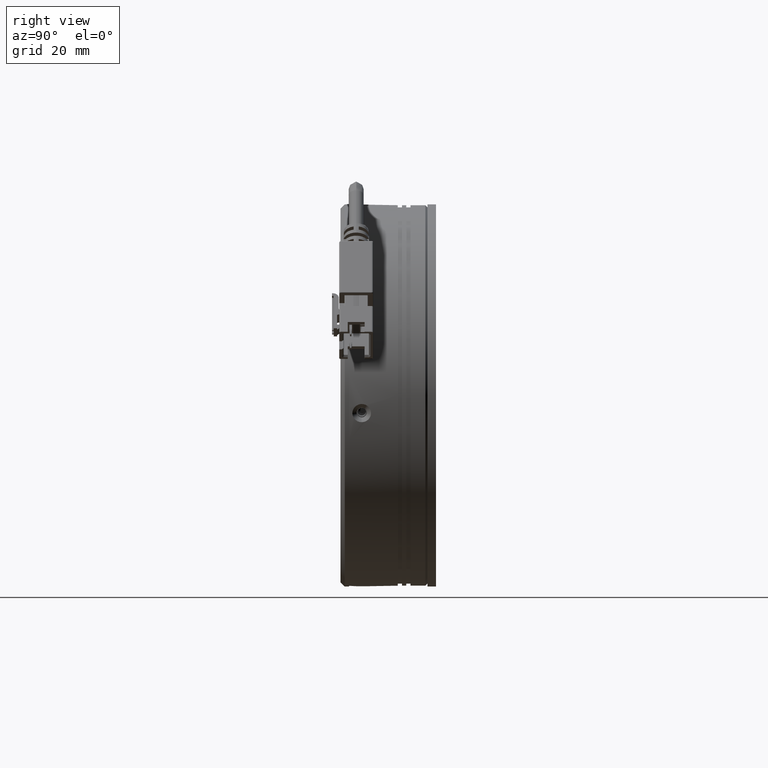
[diagram: clean part render]
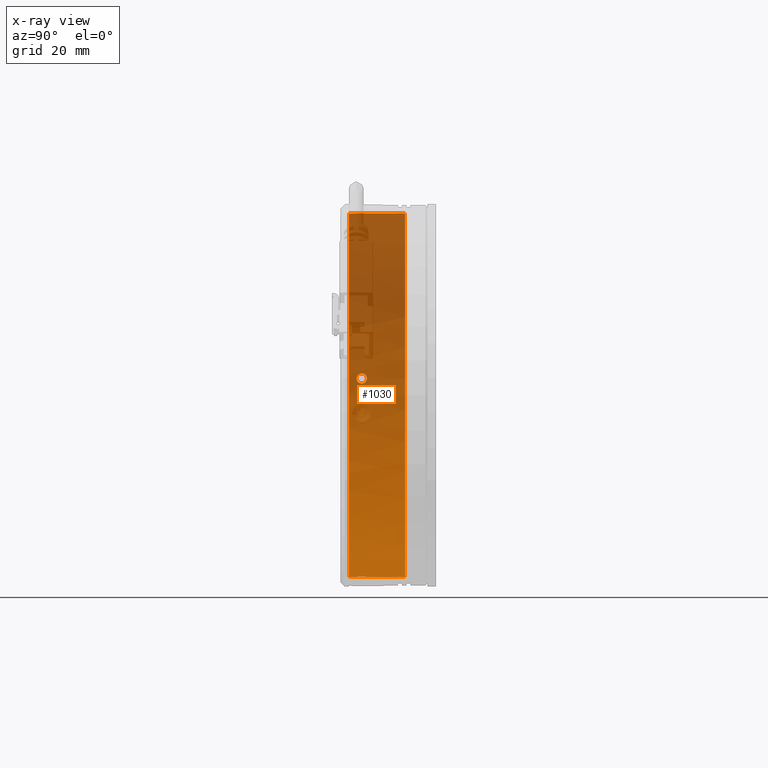
[diagram: x-ray — body ghosted, one internal face saturated and labeled with its STEP entity id]
A machine part, right view, then the same camera in x-ray: the body is ghosted and one INTERNAL B-rep face — a face not visible from any outside direction — is saturated and labeled: STEP entity #1030.
In plain terms, the highlighted cylindrical surface (partial cylindrical patch) has radius 43 mm, axis along (0, -1, 0).
Its self-contained STEP definition (entity closure, byte-faithful):
#1030 = ADVANCED_FACE ( 'NONE', ( #28821, #108524 ), #15745, .F. ) ;
#1582 = CARTESIAN_POINT ( 'NONE',  ( -59.13055851118587500, 21.16479325353773400, -46.48959252541622100 ) ) ;
#1676 = AXIS2_PLACEMENT_3D ( 'NONE', #31328, #104038, #41767 ) ;
#2055 = CARTESIAN_POINT ( 'NONE',  ( -59.01102577601075400, 20.87428248863354300, -46.50381579064270500 ) ) ;
#2647 = CARTESIAN_POINT ( 'NONE',  ( -96.86757582513840200, 20.51770827677443900, -0.5529939431728031500 ) ) ;
#2734 = ORIENTED_EDGE ( 'NONE', *, *, #115306, .F. ) ;
#3347 = CARTESIAN_POINT ( 'NONE',  ( -50.74681618080435900, 20.51933151601326000, 39.07973788981537700 ) ) ;
#3400 = CARTESIAN_POINT ( 'NONE',  ( -96.80562336960153400, 31.65322862557684400, 0.1802548467408904300 ) ) ;
#3626 = CARTESIAN_POINT ( 'NONE',  ( -96.89797751519418500, 21.79289201016769400, -0.9849878198004277100 ) ) ;
#3841 = CARTESIAN_POINT ( 'NONE',  ( -96.80431268817427800, 31.66174108781863300, 0.1943612039414953100 ) ) ;
#4062 = CARTESIAN_POINT ( 'NONE',  ( -96.68172236076956900, 21.79317404277602000, 1.342502706317228100 ) ) ;
#5179 = CARTESIAN_POINT ( 'NONE',  ( -57.96821724117605600, 31.65322812544198800, -46.61350495949732700 ) ) ;
#5618 = CARTESIAN_POINT ( 'NONE',  ( -50.01186446922126500, 31.65322812541536400, 39.01766022335910800 ) ) ;
#5931 = VERTEX_POINT ( 'NONE', #119558 ) ;
#6181 = CARTESIAN_POINT ( 'NONE',  ( -50.32653876319675100, 22.64691947902560200, 39.04597531702494700 ) ) ;
#7536 = CARTESIAN_POINT ( 'NONE',  ( -57.96821724117763400, 22.67876601230220100, -46.61350495949558600 ) ) ;
#8020 = EDGE_CURVE ( 'NONE', #64007, #104411, #68437, .T. ) ;
#8264 = DIRECTION ( 'NONE',  ( 0.0000000000000000000, -1.000000000000000000, 0.0000000000000000000 ) ) ;
#8490 = ORIENTED_EDGE ( 'NONE', *, *, #82921, .T. ) ;
#9076 = CARTESIAN_POINT ( 'NONE',  ( -57.96821724117763400, 18.47876601230220900, -46.61350495949558600 ) ) ;
#9286 = CARTESIAN_POINT ( 'NONE',  ( -50.05418630618800800, 31.67876601226952400, 39.02157142818928300 ) ) ;
#9386 = AXIS2_PLACEMENT_3D ( 'NONE', #53058, #53790, #49334 ) ;
#9787 = VERTEX_POINT ( 'NONE', #25003 ) ;
#11433 = ORIENTED_EDGE ( 'NONE', *, *, #123347, .F. ) ;
#12129 = CARTESIAN_POINT ( 'NONE',  ( -59.16152130652403000, 21.32029263391762800, -46.48581046226725300 ) ) ;
#12274 = CARTESIAN_POINT ( 'NONE',  ( -96.67792894938492100, 21.32021690081612400, 1.373558083239857300 ) ) ;
#12578 = CARTESIAN_POINT ( 'NONE',  ( -58.70270433818497900, 20.51985732902811700, -46.53903888285432100 ) ) ;
#12648 = DIRECTION ( 'NONE',  ( 0.0000000000000000000, -1.000000000000000000, 0.0000000000000000000 ) ) ;
#13172 = CARTESIAN_POINT ( 'NONE',  ( -96.88991127892792600, 20.87358254529853200, -0.8645356997651765200 ) ) ;
#13879 = CARTESIAN_POINT ( 'NONE',  ( -51.05687911961158000, 20.87428022849007200, 39.10196287542770900 ) ) ;
#14151 = CARTESIAN_POINT ( 'NONE',  ( -96.88385327291162200, 22.21661702246569800, -0.7758180287625345800 ) ) ;
#14589 = CARTESIAN_POINT ( 'NONE',  ( -96.67792894938493500, 21.47876601230221300, 1.373558083239857300 ) ) ;
#14617 = ORIENTED_EDGE ( 'NONE', *, *, #123970, .F. ) ;
#14841 = VERTEX_POINT ( 'NONE', #9076 ) ;
#15199 = B_SPLINE_CURVE_WITH_KNOTS ( 'NONE', 3,
 ( #27470, #16946, #130719, #37908 ),
 .UNSPECIFIED., .F., .F.,
 ( 4, 4 ),
 ( 0.0000000000000000000, 1.000000000000000000 ),
 .UNSPECIFIED. ) ;
#15212 = CIRCLE ( 'NONE', #134130, 43.00000000000000000 ) ;
#15745 = CYLINDRICAL_SURFACE ( 'NONE', #9386, 43.00000000000000000 ) ;
#16179 = EDGE_CURVE ( 'NONE', #34645, #92623, #77992, .T. ) ;
#16661 = CARTESIAN_POINT ( 'NONE',  ( -50.01186446922403000, 22.67876601230220100, 39.01766022332921600 ) ) ;
#16946 = CARTESIAN_POINT ( 'NONE',  ( -96.80823788860273300, 31.67025338333813500, 0.1520401031102260900 ) ) ;
#19967 = B_SPLINE_CURVE_WITH_KNOTS ( 'NONE', 3,
 ( #7536, #48543, #90824, #28510, #101263, #38942, #111718, #49467, #122144, #59896 ),
 .UNSPECIFIED., .F., .F.,
 ( 4, 2, 2, 2, 4 ),
 ( 6.938893903907228400E-018, 0.0004686704738960174000, 0.0009373409477920278500, 0.001406011421688038200, 0.001874681895584048800 ),
 .UNSPECIFIED. ) ;
#21084 = VECTOR ( 'NONE', #114832, 1000.000000000000000 ) ;
#21283 = EDGE_CURVE ( 'NONE', #24943, #114896, #15199, .T. ) ;
#21458 = LINE ( 'NONE', #80405, #128888 ) ;
#23073 = CARTESIAN_POINT ( 'NONE',  ( -58.28272155314756700, 20.31061254557882000, -46.58336041487204700 ) ) ;
#23221 = CARTESIAN_POINT ( 'NONE',  ( -96.69595082793580300, 20.87401925040273900, 1.222922440470592700 ) ) ;
#23674 = CARTESIAN_POINT ( 'NONE',  ( -96.89996670116035200, 21.32021693622073900, -1.016148852094848500 ) ) ;
#24349 = CARTESIAN_POINT ( 'NONE',  ( -51.20826733921236200, 21.32029273177708000, 39.11200347787634300 ) ) ;
#24622 = CARTESIAN_POINT ( 'NONE',  ( -96.85751770825967800, 22.52740794203347700, -0.4214931607460495900 ) ) ;
#24844 = CARTESIAN_POINT ( 'NONE',  ( -96.80168086924969400, 31.67876601095492000, 0.2225729403210405200 ) ) ;
#24943 = VERTEX_POINT ( 'NONE', #50688 ) ;
#25003 = CARTESIAN_POINT ( 'NONE',  ( -50.01186446922403000, 20.27876601230222100, 39.01766022332921600 ) ) ;
#26822 = CARTESIAN_POINT ( 'NONE',  ( -51.20826733921226300, 21.47876601230221300, 39.11200347787633500 ) ) ;
#27470 = CARTESIAN_POINT ( 'NONE',  ( -96.80954510899997000, 31.67876601095487400, 0.1379331521673202200 ) ) ;
#28316 = CARTESIAN_POINT ( 'NONE',  ( -57.96821724117763400, 20.27876601230222100, -46.61350495949558600 ) ) ;
#28510 = CARTESIAN_POINT ( 'NONE',  ( -58.56973787702020900, 22.52725014303103300, -46.55359423419172100 ) ) ;
#28821 = FACE_BOUND ( 'NONE', #31308, .T. ) ;
#29647 = CARTESIAN_POINT ( 'NONE',  ( -53.99004085520083900, 31.67876601230221200, -3.797922368083184200 ) ) ;
#31308 = EDGE_LOOP ( 'NONE', ( #135171, #57492 ) ) ;
#31328 = CARTESIAN_POINT ( 'NONE',  ( -53.99004085520083900, 18.47876601230220900, -3.797922368083184200 ) ) ;
#33508 = CARTESIAN_POINT ( 'NONE',  ( -57.96821724117763400, 20.27876601230222100, -46.61350495949558600 ) ) ;
#33650 = CARTESIAN_POINT ( 'NONE',  ( -96.73120243993423600, 20.51953091391165500, 0.9143344957996301100 ) ) ;
#34032 = B_SPLINE_CURVE_WITH_KNOTS ( 'NONE', 3,
 ( #107360, #55557, #3626, #76471, #14151, #86954, #24622, #97385, #35080, #107799, #45533, #118238, #56003, #128769, #66478, #4062, #76911, #14589 ),
 .UNSPECIFIED., .F., .F.,
 ( 4, 2, 2, 2, 2, 2, 2, 2, 4 ),
 ( 0.003751155575174307400, 0.004220050126775160200, 0.004688944678376012900, 0.005157839229976866500, 0.005626733781577719300, 0.006095628333178572000, 0.006564522884779424800, 0.007033417436380277500, 0.007502311987981130300 ),
 .UNSPECIFIED. ) ;
#34357 = CARTESIAN_POINT ( 'NONE',  ( -50.01186446922403000, 20.27876601230222100, 39.01766022332921600 ) ) ;
#34645 = VERTEX_POINT ( 'NONE', #5179 ) ;
#34941 = VERTEX_POINT ( 'NONE', #125635 ) ;
#35080 = CARTESIAN_POINT ( 'NONE',  ( -96.82017544590824800, 22.67865957059294500, 0.02360433792865126000 ) ) ;
#35319 = VERTEX_POINT ( 'NONE', #131964 ) ;
#37139 = CARTESIAN_POINT ( 'NONE',  ( -51.20826733921226300, 21.47876601230221300, 39.11200347787633500 ) ) ;
#37381 = ORIENTED_EDGE ( 'NONE', *, *, #91503, .T. ) ;
#37908 = CARTESIAN_POINT ( 'NONE',  ( -96.80562336960153400, 31.65322862557684400, 0.1802548467408904300 ) ) ;
#38942 = CARTESIAN_POINT ( 'NONE',  ( -58.92203728123876500, 22.21699232912831700, -46.51428535387514500 ) ) ;
#40082 = DIRECTION ( 'NONE',  ( -0.09251572990643718000, 0.0000000000000000000, -0.9957112230561023800 ) ) ;
#41179 = DIRECTION ( 'NONE',  ( 0.0000000000000000000, -1.000000000000000000, 0.0000000000000000000 ) ) ;
#41767 = DIRECTION ( 'NONE',  ( -0.09251572990643718000, 0.0000000000000000000, -0.9957112230561023800 ) ) ;
#42133 = CARTESIAN_POINT ( 'NONE',  ( -50.01186446922403000, 10.11989054203920400, 39.01766022332921600 ) ) ;
#43335 = VECTOR ( 'NONE', #12648, 1000.000000000000000 ) ;
#44121 = CARTESIAN_POINT ( 'NONE',  ( -96.77555139905590000, 20.31040733600649900, 0.4940391230490607800 ) ) ;
#45052 = ORIENTED_EDGE ( 'NONE', *, *, #135025, .T. ) ;
#45533 = CARTESIAN_POINT ( 'NONE',  ( -96.77577747926216000, 22.64784701081818200, 0.4918155024610730300 ) ) ;
#47034 = CARTESIAN_POINT ( 'NONE',  ( -50.05418630618800800, 31.67876601226952400, 39.02157142818928300 ) ) ;
#47274 = CARTESIAN_POINT ( 'NONE',  ( -57.98232387409957100, 31.66174075440059700, -46.61219425272943100 ) ) ;
#47616 = CARTESIAN_POINT ( 'NONE',  ( -51.17713777555357500, 21.79273877106668100, 39.11001627802897200 ) ) ;
#47749 = EDGE_CURVE ( 'NONE', #24943, #92623, #15212, .T. ) ;
#47930 = CARTESIAN_POINT ( 'NONE',  ( -58.01053519152217300, 31.67876601233793500, -46.60955192468390600 ) ) ;
#48543 = CARTESIAN_POINT ( 'NONE',  ( -58.12601096211489700, 22.67876601230220500, -46.59884367926780900 ) ) ;
#49334 = DIRECTION ( 'NONE',  ( -0.09251572990643718000, 0.0000000000000000000, -0.9957112230561023800 ) ) ;
#49467 = CARTESIAN_POINT ( 'NONE',  ( -59.12989638319632500, 21.79471032851107600, -46.48967188511356600 ) ) ;
#50165 = CARTESIAN_POINT ( 'NONE',  ( -96.67792894938493500, 21.47876601230221300, 1.373558083239857300 ) ) ;
#50688 = CARTESIAN_POINT ( 'NONE',  ( -96.80954510899997000, 31.67876601095487400, 0.1379331521673202200 ) ) ;
#52958 = ORIENTED_EDGE ( 'NONE', *, *, #99230, .T. ) ;
#53058 = CARTESIAN_POINT ( 'NONE',  ( -53.99004085520083900, 10.11989054203920400, -3.797922368083184200 ) ) ;
#53790 = DIRECTION ( 'NONE',  ( 0.0000000000000000000, -1.000000000000000000, 0.0000000000000000000 ) ) ;
#54594 = CARTESIAN_POINT ( 'NONE',  ( -96.82003073102922000, 20.27866012275181600, 0.02522589732732118500 ) ) ;
#55274 = CARTESIAN_POINT ( 'NONE',  ( -50.16965819016129300, 20.27876601230221400, 39.03232150355699300 ) ) ;
#55557 = CARTESIAN_POINT ( 'NONE',  ( -96.89996670116035200, 21.63731512378893000, -1.016148852094681500 ) ) ;
#56003 = CARTESIAN_POINT ( 'NONE',  ( -96.73142323909094400, 22.43982374782998000, 0.9123639815030434300 ) ) ;
#57492 = ORIENTED_EDGE ( 'NONE', *, *, #106444, .F. ) ;
#57905 = CARTESIAN_POINT ( 'NONE',  ( -59.16152130652402300, 21.47876601230221300, -46.48581046226725300 ) ) ;
#58075 = CARTESIAN_POINT ( 'NONE',  ( -50.96816138460680900, 22.21630882969532200, 39.09590565528512200 ) ) ;
#59896 = CARTESIAN_POINT ( 'NONE',  ( -59.16152130652402300, 21.47876601230221300, -46.48581046226725300 ) ) ;
#60147 = CARTESIAN_POINT ( 'NONE',  ( -57.96821724117763400, 10.11989054203920400, -46.61350495949558600 ) ) ;
#62175 = ORIENTED_EDGE ( 'NONE', *, *, #21283, .T. ) ;
#63480 = EDGE_CURVE ( 'NONE', #120085, #64007, #19967, .T. ) ;
#64007 = VERTEX_POINT ( 'NONE', #57905 ) ;
#64173 = VERTEX_POINT ( 'NONE', #50165 ) ;
#64458 = CARTESIAN_POINT ( 'NONE',  ( -59.16152130652402300, 21.47876601230221300, -46.48581046226725300 ) ) ;
#64837 = B_SPLINE_CURVE_WITH_KNOTS ( 'NONE', 3,
 ( #75085, #12274, #85549, #23221, #95969, #33650, #106403, #44121, #116833, #54594, #127339, #65048, #2647, #75532, #13172, #86002, #23674, #96418 ),
 .UNSPECIFIED., .F., .F.,
 ( 4, 2, 2, 2, 2, 2, 2, 2, 4 ),
 ( 0.0000000000000000000, 0.0004688944468967884300, 0.0009377888937935768600, 0.001406683340690365400, 0.001875577787587153700, 0.002344472234483942000, 0.002813366681380730800, 0.003282261128277519100, 0.003751155575174307400 ),
 .UNSPECIFIED. ) ;
#64986 = CARTESIAN_POINT ( 'NONE',  ( -57.96821724117763400, 10.11989054203920400, -46.61350495949558600 ) ) ;
#65048 = CARTESIAN_POINT ( 'NONE',  ( -96.85748812416029800, 20.42974931418126900, -0.4210785599531053900 ) ) ;
#65369 = VERTEX_POINT ( 'NONE', #9286 ) ;
#65748 = CARTESIAN_POINT ( 'NONE',  ( -50.61412590828523900, 20.43028188157337900, 39.06959796847463200 ) ) ;
#65876 = CARTESIAN_POINT ( 'NONE',  ( -57.96821724117763400, 22.67876601230220100, -46.61350495949558600 ) ) ;
#66478 = CARTESIAN_POINT ( 'NONE',  ( -96.69597854806619400, 22.08394947930590700, 1.222687703565670700 ) ) ;
#67230 = EDGE_CURVE ( 'NONE', #9787, #124367, #82757, .T. ) ;
#67537 = CARTESIAN_POINT ( 'NONE',  ( -50.04007838290424100, 31.67025338335974300, 39.02027466521391800 ) ) ;
#67550 = LINE ( 'NONE', #60147, #126085 ) ;
#67994 = CARTESIAN_POINT ( 'NONE',  ( -50.02597110220634800, 31.66174075438107800, 39.01897093010302300 ) ) ;
#68437 = B_SPLINE_CURVE_WITH_KNOTS ( 'NONE', 3,
 ( #64458, #12129, #1582, #2055, #74956, #12578, #85406, #23073, #95832, #33508 ),
 .UNSPECIFIED., .F., .F.,
 ( 4, 2, 2, 2, 4 ),
 ( 0.001874681895584048800, 0.002343352658888708300, 0.002812023422193367400, 0.003280694185498026500, 0.003749364948802686000 ),
 .UNSPECIFIED. ) ;
#68571 = CARTESIAN_POINT ( 'NONE',  ( -50.61412846823255100, 22.52709814498186000, 39.06959484466949600 ) ) ;
#70786 = VERTEX_POINT ( 'NONE', #75514 ) ;
#73310 = CARTESIAN_POINT ( 'NONE',  ( -96.80562336960153400, 31.65322862557684400, 0.1802548467408904300 ) ) ;
#73864 = CIRCLE ( 'NONE', #1676, 43.00000000000000000 ) ;
#74956 = CARTESIAN_POINT ( 'NONE',  ( -58.92255973357057300, 20.74122319490911800, -46.51422482449459700 ) ) ;
#75085 = CARTESIAN_POINT ( 'NONE',  ( -96.67792894938493500, 21.47876601230221300, 1.373558083239857300 ) ) ;
#75514 = CARTESIAN_POINT ( 'NONE',  ( -50.01186446922403000, 18.47876601230220900, 39.01766022332921600 ) ) ;
#75532 = CARTESIAN_POINT ( 'NONE',  ( -96.88391128082305700, 20.74153070131335100, -0.7765906267907313200 ) ) ;
#76201 = CARTESIAN_POINT ( 'NONE',  ( -50.96763672397546700, 20.74053969547610900, 39.09586889298326200 ) ) ;
#76471 = CARTESIAN_POINT ( 'NONE',  ( -96.88992728075425000, 22.08351277420170100, -0.8647715254671489700 ) ) ;
#76911 = CARTESIAN_POINT ( 'NONE',  ( -96.67792894938493500, 21.63731515919229800, 1.373558083239857100 ) ) ;
#77992 = B_SPLINE_CURVE_WITH_KNOTS ( 'NONE', 3,
 ( #110462, #47274, #79131, #120901 ),
 .UNSPECIFIED., .F., .F.,
 ( 4, 4 ),
 ( 0.0000000000000000000, 1.000000000000000000 ),
 .UNSPECIFIED. ) ;
#78811 = CARTESIAN_POINT ( 'NONE',  ( -50.01186446922403000, 22.67876601230220100, 39.01766022332921600 ) ) ;
#79022 = CARTESIAN_POINT ( 'NONE',  ( -50.16965809285910900, 22.67876601230220100, 39.03232149451623200 ) ) ;
#79131 = CARTESIAN_POINT ( 'NONE',  ( -57.99642985931386400, 31.67025338339706800, -46.61087657429839500 ) ) ;
#80405 = CARTESIAN_POINT ( 'NONE',  ( -50.01186446922403000, 10.11989054203920400, 39.01766022332921600 ) ) ;
#82757 = B_SPLINE_CURVE_WITH_KNOTS ( 'NONE', 3,
 ( #34357, #55274, #128020, #65748, #3347, #76201, #13879, #86692, #24349, #97115 ),
 .UNSPECIFIED., .F., .F.,
 ( 4, 2, 2, 2, 4 ),
 ( 0.0000000000000000000, 0.0004686704738960180500, 0.0009373409477920360900, 0.001406011421688054200, 0.001874681895584072200 ),
 .UNSPECIFIED. ) ;
#82921 = EDGE_CURVE ( 'NONE', #65369, #35319, #94094, .T. ) ;
#83500 = CIRCLE ( 'NONE', #92528, 43.00000000000000000 ) ;
#84267 = B_SPLINE_CURVE_WITH_KNOTS ( 'NONE', 3,
 ( #3400, #3841, #87172, #24844 ),
 .UNSPECIFIED., .F., .F.,
 ( 4, 4 ),
 ( 1.958528762031069600E-005, 1.000000000000000000 ),
 .UNSPECIFIED. ) ;
#84561 = ORIENTED_EDGE ( 'NONE', *, *, #47749, .F. ) ;
#85135 = ORIENTED_EDGE ( 'NONE', *, *, #103523, .F. ) ;
#85406 = CARTESIAN_POINT ( 'NONE',  ( -58.56973981762219200, 20.43043387962256600, -46.55359069222154700 ) ) ;
#85549 = CARTESIAN_POINT ( 'NONE',  ( -96.68171485812949600, 21.16464001443673500, 1.342563992037908900 ) ) ;
#86002 = CARTESIAN_POINT ( 'NONE',  ( -96.89797359824909500, 21.16435798182838800, -0.9849262009176985600 ) ) ;
#86692 = CARTESIAN_POINT ( 'NONE',  ( -51.17647236101910800, 21.16282169609336000, 39.10997229015048000 ) ) ;
#86954 = CARTESIAN_POINT ( 'NONE',  ( -96.86772184911062300, 22.43800111069277400, -0.5549714051471990000 ) ) ;
#87172 = CARTESIAN_POINT ( 'NONE',  ( -96.80299503536001300, 31.67025355006042300, 0.2084669134009927100 ) ) ;
#88980 = VERTEX_POINT ( 'NONE', #78811 ) ;
#90824 = CARTESIAN_POINT ( 'NONE',  ( -58.28076009375503500, 22.64758610942670500, -46.58356049526212000 ) ) ;
#91503 = EDGE_CURVE ( 'NONE', #35319, #88980, #100806, .T. ) ;
#92231 = EDGE_CURVE ( 'NONE', #65369, #34941, #83500, .T. ) ;
#92452 = ORIENTED_EDGE ( 'NONE', *, *, #8020, .F. ) ;
#92528 = AXIS2_PLACEMENT_3D ( 'NONE', #103453, #41179, #113900 ) ;
#92623 = VERTEX_POINT ( 'NONE', #47930 ) ;
#94094 = B_SPLINE_CURVE_WITH_KNOTS ( 'NONE', 3,
 ( #47034, #67537, #67994, #5618 ),
 .UNSPECIFIED., .F., .F.,
 ( 4, 4 ),
 ( 0.0000000000000000000, 1.000000000000000000 ),
 .UNSPECIFIED. ) ;
#95832 = CARTESIAN_POINT ( 'NONE',  ( -58.12601086481245000, 20.27876601230218900, -46.59884368830860500 ) ) ;
#95969 = CARTESIAN_POINT ( 'NONE',  ( -96.70636940243962000, 20.74091500213872800, 1.134372615780986100 ) ) ;
#96418 = CARTESIAN_POINT ( 'NONE',  ( -96.89996670116036600, 21.47876601230221300, -1.016148852094764400 ) ) ;
#97115 = CARTESIAN_POINT ( 'NONE',  ( -51.20826733921226300, 21.47876601230221300, 39.11200347787633500 ) ) ;
#97385 = CARTESIAN_POINT ( 'NONE',  ( -96.83387729119319000, 22.64712468859792000, -0.1337000241704109400 ) ) ;
#98413 = EDGE_LOOP ( 'NONE', ( #8490, #37381, #11433, #105496, #52958, #2734, #85135, #92452, #102759, #14617, #135110, #84561, #62175, #45052, #100653 ) ) ;
#99230 = EDGE_CURVE ( 'NONE', #9787, #70786, #21458, .T. ) ;
#99439 = CARTESIAN_POINT ( 'NONE',  ( -51.20826733921217800, 21.63723939068742300, 39.11200347787632100 ) ) ;
#100653 = ORIENTED_EDGE ( 'NONE', *, *, #92231, .F. ) ;
#100806 = LINE ( 'NONE', #42133, #21084 ) ;
#101263 = CARTESIAN_POINT ( 'NONE',  ( -58.70202487274481500, 22.43820050859115500, -46.53911399979600100 ) ) ;
#102382 = DIRECTION ( 'NONE',  ( 0.0000000000000000000, -1.000000000000000000, 0.0000000000000000000 ) ) ;
#102759 = ORIENTED_EDGE ( 'NONE', *, *, #63480, .F. ) ;
#103453 = CARTESIAN_POINT ( 'NONE',  ( -53.99004085520083900, 31.67876601230221200, -3.797922368083184200 ) ) ;
#103523 = EDGE_CURVE ( 'NONE', #104411, #14841, #123019, .T. ) ;
#104038 = DIRECTION ( 'NONE',  ( -0.0000000000000000000, 1.000000000000000000, -0.0000000000000000000 ) ) ;
#104411 = VERTEX_POINT ( 'NONE', #28316 ) ;
#105496 = ORIENTED_EDGE ( 'NONE', *, *, #67230, .F. ) ;
#106403 = CARTESIAN_POINT ( 'NONE',  ( -96.74576472843563100, 20.43012408257095600, 0.7812611852804995900 ) ) ;
#106444 = EDGE_CURVE ( 'NONE', #5931, #64173, #34032, .T. ) ;
#107360 = CARTESIAN_POINT ( 'NONE',  ( -96.89996670116036600, 21.47876601230221300, -1.016148852094764400 ) ) ;
#107799 = CARTESIAN_POINT ( 'NONE',  ( -96.79122204696321300, 22.67887190185259900, 0.3352826852380393400 ) ) ;
#108524 = FACE_OUTER_BOUND ( 'NONE', #98413, .T. ) ;
#110462 = CARTESIAN_POINT ( 'NONE',  ( -57.96821724117605600, 31.65322812544198800, -46.61350495949732700 ) ) ;
#111718 = CARTESIAN_POINT ( 'NONE',  ( -59.01087473947404800, 22.08325179611435700, -46.50383318590866100 ) ) ;
#113900 = DIRECTION ( 'NONE',  ( -0.09251572990643718000, 0.0000000000000000000, -0.9957112230561023800 ) ) ;
#114832 = DIRECTION ( 'NONE',  ( 0.0000000000000000000, -1.000000000000000000, 0.0000000000000000000 ) ) ;
#114896 = VERTEX_POINT ( 'NONE', #73310 ) ;
#115306 = EDGE_CURVE ( 'NONE', #14841, #70786, #73864, .T. ) ;
#116833 = CARTESIAN_POINT ( 'NONE',  ( -96.79106553186635200, 20.27887245401148100, 0.3369031482287027100 ) ) ;
#118238 = CARTESIAN_POINT ( 'NONE',  ( -96.74581203594623000, 22.52778271042315000, 0.7808482312444399200 ) ) ;
#118569 = B_SPLINE_CURVE_WITH_KNOTS ( 'NONE', 3,
 ( #37139, #99439, #47616, #120333, #58075, #130855, #68571, #6181, #79022, #16661 ),
 .UNSPECIFIED., .F., .F.,
 ( 4, 2, 2, 2, 4 ),
 ( 0.001874681895584072200, 0.002343352658888732600, 0.002812023422193392500, 0.003280694185498052900, 0.003749364948802713300 ),
 .UNSPECIFIED. ) ;
#119558 = CARTESIAN_POINT ( 'NONE',  ( -96.89996670116036600, 21.47876601230221300, -1.016148852094764400 ) ) ;
#120085 = VERTEX_POINT ( 'NONE', #65876 ) ;
#120333 = CARTESIAN_POINT ( 'NONE',  ( -51.05703077552374200, 22.08324953597088200, 39.10197360459402200 ) ) ;
#120901 = CARTESIAN_POINT ( 'NONE',  ( -58.01053519152217300, 31.67876601233793500, -46.60955192468390600 ) ) ;
#122144 = CARTESIAN_POINT ( 'NONE',  ( -59.16152130652403000, 21.63723929282797800, -46.48581046226726000 ) ) ;
#122612 = DIRECTION ( 'NONE',  ( 0.0000000000000000000, -1.000000000000000000, 0.0000000000000000000 ) ) ;
#123019 = LINE ( 'NONE', #64986, #43335 ) ;
#123347 = EDGE_CURVE ( 'NONE', #124367, #88980, #118569, .T. ) ;
#123970 = EDGE_CURVE ( 'NONE', #34645, #120085, #67550, .T. ) ;
#124367 = VERTEX_POINT ( 'NONE', #26822 ) ;
#125635 = CARTESIAN_POINT ( 'NONE',  ( -96.80168086924969400, 31.67876601095492000, 0.2225729403210405200 ) ) ;
#126085 = VECTOR ( 'NONE', #8264, 1000.000000000000000 ) ;
#127339 = CARTESIAN_POINT ( 'NONE',  ( -96.83368982609593400, 20.30968501378623600, -0.1314728156897529400 ) ) ;
#128020 = CARTESIAN_POINT ( 'NONE',  ( -50.32457401830372800, 20.30994591517771800, 39.04581059721307700 ) ) ;
#128769 = CARTESIAN_POINT ( 'NONE',  ( -96.70628407551390600, 22.21600132329108800, 1.135142675484311500 ) ) ;
#128888 = VECTOR ( 'NONE', #122612, 1000.000000000000000 ) ;
#129562 = EDGE_CURVE ( 'NONE', #64173, #5931, #64837, .T. ) ;
#130719 = CARTESIAN_POINT ( 'NONE',  ( -96.80693415343803600, 31.66174075437405800, 0.1661473843850216100 ) ) ;
#130855 = CARTESIAN_POINT ( 'NONE',  ( -50.74749785432500500, 22.43767469557632300, 39.07978924203617800 ) ) ;
#131964 = CARTESIAN_POINT ( 'NONE',  ( -50.01186446922126500, 31.65322812541536400, 39.01766022335910800 ) ) ;
#134130 = AXIS2_PLACEMENT_3D ( 'NONE', #29647, #102382, #40082 ) ;
#135025 = EDGE_CURVE ( 'NONE', #114896, #34941, #84267, .T. ) ;
#135110 = ORIENTED_EDGE ( 'NONE', *, *, #16179, .T. ) ;
#135171 = ORIENTED_EDGE ( 'NONE', *, *, #129562, .F. ) ;